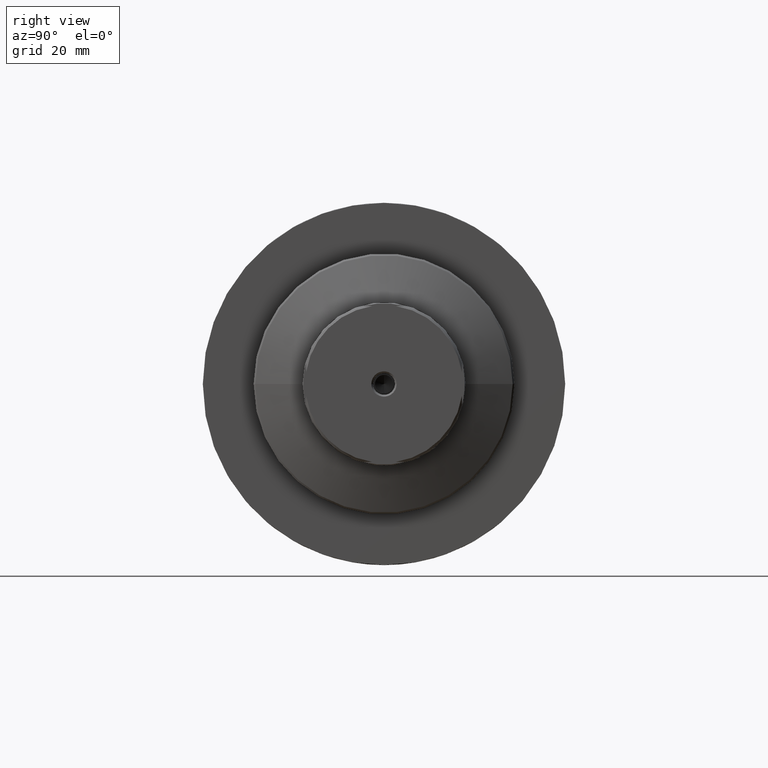
[diagram: clean part render]
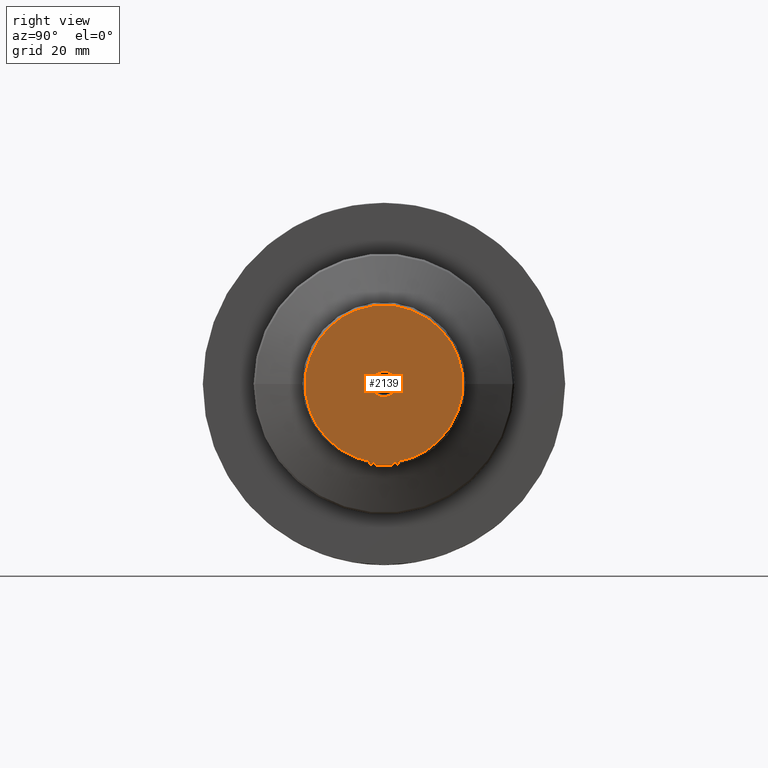
[diagram: same view with one face highlighted and labeled with its STEP entity id]
A machine part, right view. The second image highlights one B-rep face of the part: STEP entity #2139.
In plain terms, the highlighted planar face has unit normal (-1, -0, 0).
Its self-contained STEP definition (entity closure, byte-faithful):
#29 = DIRECTION ( 'NONE',  ( 0.000000000000000000, -1.000000000000000000, 0.000000000000000000 ) ) ;
#38 = ORIENTED_EDGE ( 'NONE', *, *, #1420, .F. ) ;
#43 = AXIS2_PLACEMENT_3D ( 'NONE', #167, #201, #367 ) ;
#44 = DIRECTION ( 'NONE',  ( 0.000000000000000000, -1.000000000000000000, 0.000000000000000000 ) ) ;
#68 = CARTESIAN_POINT ( 'NONE',  ( 144.0000000000000853, 5.728219618692435233, -21.49999999999999645 ) ) ;
#92 = LINE ( 'NONE', #68, #1800 ) ;
#102 = CARTESIAN_POINT ( 'NONE',  ( 144.0000000000003411, 21.49999999999761258, 5.728219618694820880 ) ) ;
#129 = VECTOR ( 'NONE', #1273, 1000.000000000000000 ) ;
#141 = VERTEX_POINT ( 'NONE', #1624 ) ;
#144 = EDGE_CURVE ( 'NONE', #141, #2231, #2103, .T. ) ;
#167 = CARTESIAN_POINT ( 'NONE',  ( 144.0000000000000000, 1.540140943779454728E-15, 0.000000000000000000 ) ) ;
#182 = FACE_OUTER_BOUND ( 'NONE', #365, .T. ) ;
#201 = DIRECTION ( 'NONE',  ( 1.000000000000000000, 1.069542322069065801E-17, 0.000000000000000000 ) ) ;
#264 = DIRECTION ( 'NONE',  ( 1.000000000000000000, 1.069542322069065801E-17, 0.000000000000000000 ) ) ;
#269 = EDGE_CURVE ( 'NONE', #1728, #1973, #279, .T. ) ;
#275 = LINE ( 'NONE', #102, #1960 ) ;
#279 = CIRCLE ( 'NONE', #1016, 21.74999999999997158 ) ;
#335 = DIRECTION ( 'NONE',  ( 0.000000000000000000, -1.000000000000000000, 0.000000000000000000 ) ) ;
#348 = CARTESIAN_POINT ( 'NONE',  ( 144.0000000000000000, -3.500000000003050449, 4.286263797016549615E-16 ) ) ;
#365 = EDGE_LOOP ( 'NONE', ( #2115, #1725, #38, #484, #1038, #578, #524, #886 ) ) ;
#367 = DIRECTION ( 'NONE',  ( 0.000000000000000000, -1.000000000000000000, 0.000000000000000000 ) ) ;
#379 = ORIENTED_EDGE ( 'NONE', *, *, #2065, .T. ) ;
#484 = ORIENTED_EDGE ( 'NONE', *, *, #1934, .T. ) ;
#524 = ORIENTED_EDGE ( 'NONE', *, *, #1134, .F. ) ;
#539 = CIRCLE ( 'NONE', #1848, 3.500000000000542233 ) ;
#551 = CARTESIAN_POINT ( 'NONE',  ( 144.0000000000000000, 8.673617379884035472E-16, 0.000000000000000000 ) ) ;
#578 = ORIENTED_EDGE ( 'NONE', *, *, #1408, .T. ) ;
#620 = CARTESIAN_POINT ( 'NONE',  ( 144.0000000000000000, 1.540140943779454728E-15, 0.000000000000000000 ) ) ;
#669 = EDGE_CURVE ( 'NONE', #1728, #2231, #92, .T. ) ;
#771 = DIRECTION ( 'NONE',  ( 1.000000000000000000, 1.069542322069065801E-17, 0.000000000000000000 ) ) ;
#802 = VERTEX_POINT ( 'NONE', #348 ) ;
#839 = VERTEX_POINT ( 'NONE', #1209 ) ;
#886 = ORIENTED_EDGE ( 'NONE', *, *, #144, .T. ) ;
#890 = FACE_BOUND ( 'NONE', #1166, .T. ) ;
#902 = CARTESIAN_POINT ( 'NONE',  ( 144.0000000000000000, -2.386461311268812200E-12, 0.000000000000000000 ) ) ;
#927 = VERTEX_POINT ( 'NONE', #2188 ) ;
#960 = CARTESIAN_POINT ( 'NONE',  ( 144.0000000000000000, 21.49999999999761258, 3.288236609506725028 ) ) ;
#1010 = EDGE_CURVE ( 'NONE', #927, #1161, #2167, .T. ) ;
#1011 = LINE ( 'NONE', #2135, #1505 ) ;
#1016 = AXIS2_PLACEMENT_3D ( 'NONE', #620, #2209, #44 ) ;
#1032 = AXIS2_PLACEMENT_3D ( 'NONE', #551, #1268, #1752 ) ;
#1038 = ORIENTED_EDGE ( 'NONE', *, *, #1010, .F. ) ;
#1066 = AXIS2_PLACEMENT_3D ( 'NONE', #1900, #1888, #2263 ) ;
#1080 = DIRECTION ( 'NONE',  ( 0.000000000000000000, -3.028381576562776770E-16, 1.000000000000000000 ) ) ;
#1125 = CARTESIAN_POINT ( 'NONE',  ( 144.0000000000000000, 1.540140943779454728E-15, 0.000000000000000000 ) ) ;
#1134 = EDGE_CURVE ( 'NONE', #141, #2062, #1011, .T. ) ;
#1161 = VERTEX_POINT ( 'NONE', #1614 ) ;
#1166 = EDGE_LOOP ( 'NONE', ( #379, #1887 ) ) ;
#1209 = CARTESIAN_POINT ( 'NONE',  ( 144.0000000000000000, 3.499999999998149924, 0.000000000000000000 ) ) ;
#1268 = DIRECTION ( 'NONE',  ( -1.000000000000000000, -1.069542322069065801E-17, 0.000000000000000000 ) ) ;
#1273 = DIRECTION ( 'NONE',  ( 1.453623156750132929E-14, 1.000000000000000000, -3.028381576562776770E-16 ) ) ;
#1390 = PLANE ( 'NONE',  #1032 ) ;
#1408 = EDGE_CURVE ( 'NONE', #927, #2062, #1881, .T. ) ;
#1413 = CARTESIAN_POINT ( 'NONE',  ( 143.9999999999999432, -3.288236609491320017, -21.49999999999999289 ) ) ;
#1420 = EDGE_CURVE ( 'NONE', #1627, #1973, #275, .T. ) ;
#1505 = VECTOR ( 'NONE', #1080, 1000.000000000000000 ) ;
#1518 = DIRECTION ( 'NONE',  ( 0.000000000000000000, -6.056763153125553540E-16, -1.000000000000000000 ) ) ;
#1540 = AXIS2_PLACEMENT_3D ( 'NONE', #1125, #264, #1703 ) ;
#1545 = CARTESIAN_POINT ( 'NONE',  ( 143.9999999999996305, -21.50000000000238387, 3.288236609475934991 ) ) ;
#1548 = CIRCLE ( 'NONE', #1966, 21.74999999999994316 ) ;
#1614 = CARTESIAN_POINT ( 'NONE',  ( 144.0000000000000568, 3.288236609491167695, 21.49999999999999289 ) ) ;
#1619 = CARTESIAN_POINT ( 'NONE',  ( 143.9999999999999147, -5.728219618697205640, 21.49999999999999645 ) ) ;
#1624 = CARTESIAN_POINT ( 'NONE',  ( 144.0000000000000000, -21.50000000000238032, -3.288236609475717831 ) ) ;
#1627 = VERTEX_POINT ( 'NONE', #960 ) ;
#1683 = DIRECTION ( 'NONE',  ( -1.453623156750132929E-14, -1.000000000000000000, 3.028381576562776770E-16 ) ) ;
#1703 = DIRECTION ( 'NONE',  ( 0.000000000000000000, -1.000000000000000000, 0.000000000000000000 ) ) ;
#1725 = ORIENTED_EDGE ( 'NONE', *, *, #269, .T. ) ;
#1728 = VERTEX_POINT ( 'NONE', #2211 ) ;
#1752 = DIRECTION ( 'NONE',  ( 1.069542322069065801E-17, -1.000000000000000000, 0.000000000000000000 ) ) ;
#1800 = VECTOR ( 'NONE', #1683, 1000.000000000000000 ) ;
#1804 = DIRECTION ( 'NONE',  ( -1.000000000000000000, -1.069542322069065801E-17, -0.000000000000000000 ) ) ;
#1842 = EDGE_CURVE ( 'NONE', #802, #839, #539, .T. ) ;
#1848 = AXIS2_PLACEMENT_3D ( 'NONE', #902, #1804, #335 ) ;
#1873 = CARTESIAN_POINT ( 'NONE',  ( 144.0000000000003411, 21.49999999999760547, -3.288236609506932862 ) ) ;
#1881 = CIRCLE ( 'NONE', #1540, 21.75000000000000711 ) ;
#1887 = ORIENTED_EDGE ( 'NONE', *, *, #1842, .T. ) ;
#1888 = DIRECTION ( 'NONE',  ( -1.000000000000000000, -1.069542322069065801E-17, -0.000000000000000000 ) ) ;
#1900 = CARTESIAN_POINT ( 'NONE',  ( 144.0000000000000000, -2.386461311268812200E-12, 0.000000000000000000 ) ) ;
#1928 = CIRCLE ( 'NONE', #1066, 3.500000000000542233 ) ;
#1934 = EDGE_CURVE ( 'NONE', #1627, #1161, #1548, .T. ) ;
#1960 = VECTOR ( 'NONE', #1518, 1000.000000000000000 ) ;
#1966 = AXIS2_PLACEMENT_3D ( 'NONE', #2174, #771, #29 ) ;
#1973 = VERTEX_POINT ( 'NONE', #1873 ) ;
#2062 = VERTEX_POINT ( 'NONE', #1545 ) ;
#2065 = EDGE_CURVE ( 'NONE', #839, #802, #1928, .T. ) ;
#2103 = CIRCLE ( 'NONE', #43, 21.74999999999997158 ) ;
#2115 = ORIENTED_EDGE ( 'NONE', *, *, #669, .F. ) ;
#2135 = CARTESIAN_POINT ( 'NONE',  ( 143.9999999999996305, -21.50000000000238032, -5.728219618694824433 ) ) ;
#2139 = ADVANCED_FACE ( 'NONE', ( #890, #182 ), #1390, .F. ) ;
#2167 = LINE ( 'NONE', #1619, #129 ) ;
#2174 = CARTESIAN_POINT ( 'NONE',  ( 144.0000000000000000, 1.540140943779454728E-15, 0.000000000000000000 ) ) ;
#2188 = CARTESIAN_POINT ( 'NONE',  ( 143.9999999999999432, -3.288236609491562490, 21.49999999999999289 ) ) ;
#2209 = DIRECTION ( 'NONE',  ( 1.000000000000000000, 1.069542322069065801E-17, 0.000000000000000000 ) ) ;
#2211 = CARTESIAN_POINT ( 'NONE',  ( 144.0000000000000568, 3.288236609491310691, -21.49999999999999645 ) ) ;
#2231 = VERTEX_POINT ( 'NONE', #1413 ) ;
#2263 = DIRECTION ( 'NONE',  ( 0.000000000000000000, -1.000000000000000000, 0.000000000000000000 ) ) ;